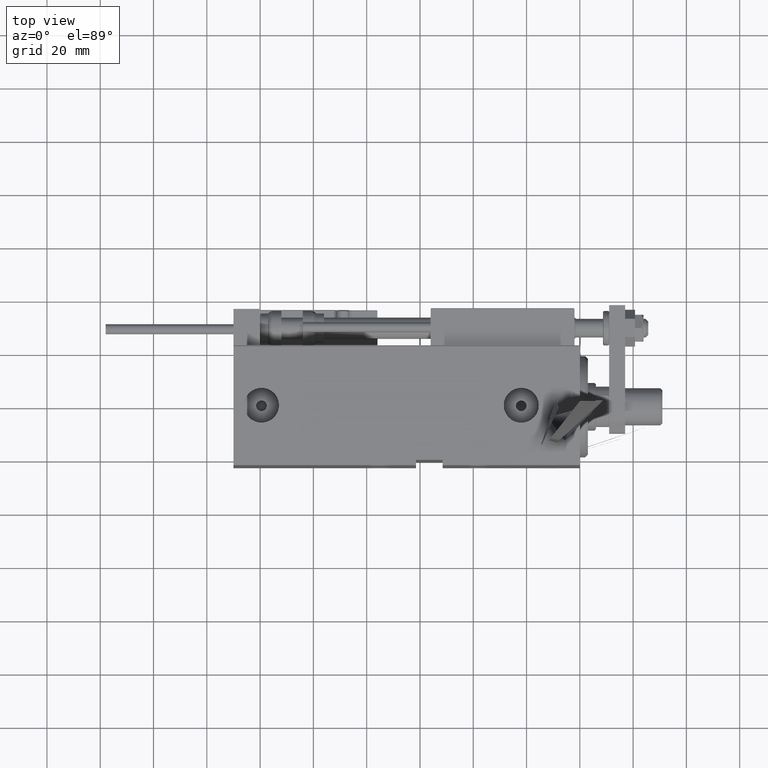
[diagram: clean part render]
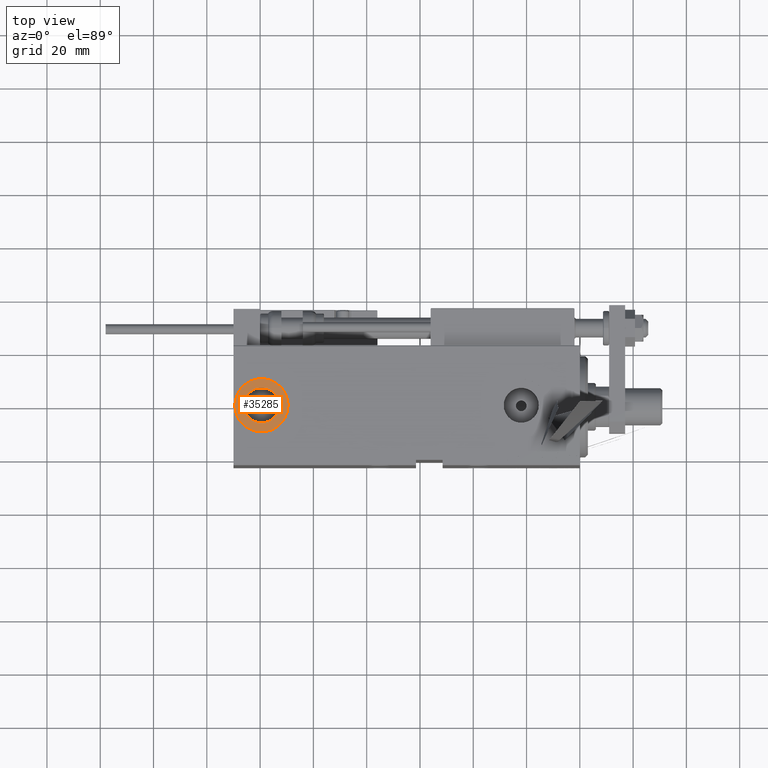
[diagram: same view with one face highlighted and labeled with its STEP entity id]
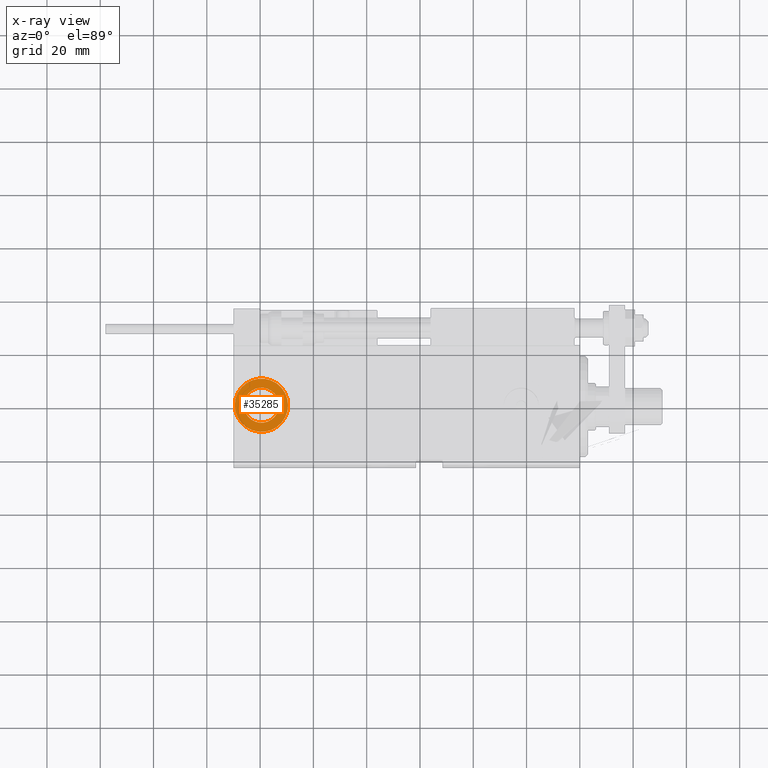
[diagram: x-ray of the same camera — body ghosted, the highlighted face saturated]
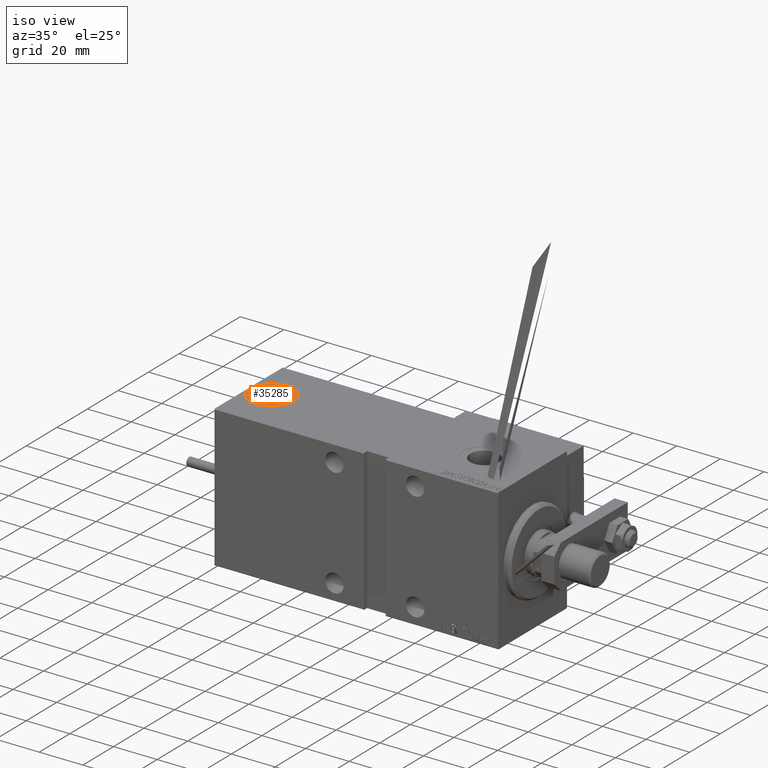
[diagram: same view with one face highlighted and labeled with its STEP entity id]
A machine part, top view. The second image highlights one B-rep face of the part: STEP entity #35285.
The next image is the same camera in x-ray: the body ghosted, the highlighted face saturated — about 0% of this face is hidden behind the body in this view.
A second angle (iso view) of the same face is appended — the face is thin or edge-on in the first view.
In plain terms, the highlighted planar face has unit normal (0, -0, 1).
Its self-contained STEP definition (entity closure, byte-faithful):
#204 = DIRECTION ( 'NONE',  ( 1.000000000000000000, 0.000000000000000000, 0.000000000000000000 ) ) ;
#3268 = DIRECTION ( 'NONE',  ( 1.000000000000000000, 0.000000000000000000, 0.000000000000000000 ) ) ;
#3611 = AXIS2_PLACEMENT_3D ( 'NONE', #34777, #50622, #42839 ) ;
#4353 = DIRECTION ( 'NONE',  ( 0.000000000000000000, 0.000000000000000000, 1.000000000000000000 ) ) ;
#4939 = CARTESIAN_POINT ( 'NONE',  ( 126.0800000000000267, -5.451988067355678313E-15, 32.39999999999999858 ) ) ;
#6919 = VERTEX_POINT ( 'NONE', #26643 ) ;
#7156 = CARTESIAN_POINT ( 'NONE',  ( 119.5000000000000142, -5.011423375044110611E-15, 32.39999999999999858 ) ) ;
#7535 = EDGE_LOOP ( 'NONE', ( #11048, #38236 ) ) ;
#8105 = ORIENTED_EDGE ( 'NONE', *, *, #15748, .T. ) ;
#9009 = CARTESIAN_POINT ( 'NONE',  ( 119.5000000000000142, -5.451988067355678313E-15, 32.39999999999999858 ) ) ;
#9920 = DIRECTION ( 'NONE',  ( 1.000000000000000000, 0.000000000000000000, 0.000000000000000000 ) ) ;
#11048 = ORIENTED_EDGE ( 'NONE', *, *, #19476, .F. ) ;
#11316 = DIRECTION ( 'NONE',  ( 0.000000000000000000, 0.000000000000000000, 1.000000000000000000 ) ) ;
#12330 = VERTEX_POINT ( 'NONE', #32099 ) ;
#13595 = DIRECTION ( 'NONE',  ( 1.000000000000000000, 0.000000000000000000, 0.000000000000000000 ) ) ;
#15121 = CARTESIAN_POINT ( 'NONE',  ( 119.5000000000000142, -5.011423375044110611E-15, 32.39999999999999858 ) ) ;
#15748 = EDGE_CURVE ( 'NONE', #6919, #12330, #42002, .T. ) ;
#16220 = CARTESIAN_POINT ( 'NONE',  ( 112.9199999999999733, -4.646170473516716904E-15, 32.39999999999999858 ) ) ;
#18571 = AXIS2_PLACEMENT_3D ( 'NONE', #9009, #4353, #204 ) ;
#18955 = PLANE ( 'NONE',  #3611 ) ;
#19476 = EDGE_CURVE ( 'NONE', #41537, #26206, #42113, .T. ) ;
#21729 = EDGE_LOOP ( 'NONE', ( #39966, #8105 ) ) ;
#22860 = FACE_BOUND ( 'NONE', #7535, .T. ) ;
#24605 = AXIS2_PLACEMENT_3D ( 'NONE', #15121, #49664, #9920 ) ;
#26206 = VERTEX_POINT ( 'NONE', #16220 ) ;
#26643 = CARTESIAN_POINT ( 'NONE',  ( 109.5000000000000142, -3.786776575896758341E-15, 32.39999999999999858 ) ) ;
#26894 = CIRCLE ( 'NONE', #18571, 6.580000000000016058 ) ;
#32099 = CARTESIAN_POINT ( 'NONE',  ( 129.5000000000000000, -5.011423375044110611E-15, 32.39999999999999858 ) ) ;
#32501 = AXIS2_PLACEMENT_3D ( 'NONE', #7156, #11316, #3268 ) ;
#34102 = DIRECTION ( 'NONE',  ( 0.000000000000000000, 0.000000000000000000, 1.000000000000000000 ) ) ;
#34777 = CARTESIAN_POINT ( 'NONE',  ( 119.5000000000000142, -5.011423375044110611E-15, 32.39999999999999858 ) ) ;
#35285 = ADVANCED_FACE ( 'NONE', ( #22860, #38699 ), #18955, .T. ) ;
#37342 = EDGE_CURVE ( 'NONE', #26206, #41537, #26894, .T. ) ;
#38023 = CARTESIAN_POINT ( 'NONE',  ( 119.5000000000000142, -5.451988067355678313E-15, 32.39999999999999858 ) ) ;
#38236 = ORIENTED_EDGE ( 'NONE', *, *, #37342, .F. ) ;
#38699 = FACE_OUTER_BOUND ( 'NONE', #21729, .T. ) ;
#39966 = ORIENTED_EDGE ( 'NONE', *, *, #50238, .T. ) ;
#41537 = VERTEX_POINT ( 'NONE', #4939 ) ;
#42002 = CIRCLE ( 'NONE', #24605, 9.999999999999994671 ) ;
#42113 = CIRCLE ( 'NONE', #48754, 6.580000000000016058 ) ;
#42839 = DIRECTION ( 'NONE',  ( 1.000000000000000000, 0.000000000000000000, -0.000000000000000000 ) ) ;
#48754 = AXIS2_PLACEMENT_3D ( 'NONE', #38023, #34102, #13595 ) ;
#49664 = DIRECTION ( 'NONE',  ( 0.000000000000000000, 0.000000000000000000, 1.000000000000000000 ) ) ;
#50238 = EDGE_CURVE ( 'NONE', #12330, #6919, #50729, .T. ) ;
#50622 = DIRECTION ( 'NONE',  ( 0.000000000000000000, 0.000000000000000000, 1.000000000000000000 ) ) ;
#50729 = CIRCLE ( 'NONE', #32501, 9.999999999999994671 ) ;